MODEL slx_0362a698a4ec
KIND library
BLOCK [SubSystem] TrueTime Battery
  FunctionWithSeparateData = off
  MaskEnableString = on
  MaskHideContents = off
  MaskIconFrame = on
  MaskIconOpaque = on
  MaskIconRotate = none
  MaskIconUnits = autoscale
  MaskPortRotate = default
  MaskPromptString = Initial energy:
  MaskStyleString = edit
  MaskToolTipString = on
  MaskTunableValueString = on
  MaskValueString = 1
  MaskVariables = energy=@1;
  MaskVisibilityString = on
  MinAlgLoopOccurrences = off
  Opaque = off
  Ports = [1, 1]
  PropExecContextOutsideSubsystem = off
  RTWSystemCode = Auto
  RequestExecContextInheritance = off
BLOCK [Outport] TrueTime Battery/E
  IconDisplay = Port number
BLOCK [Gain] TrueTime Battery/Gain
  Gain = -1
BLOCK [Integrator] TrueTime Battery/Integrator
  InitialCondition = energy
  LimitOutput = on
  LowerSaturationLimit = 0
  Ports = [1, 1]
  UpperSaturationLimit = energy
BLOCK [Inport] TrueTime Battery/P
  IconDisplay = Port number
BLOCK [Sum] TrueTime Battery/Sum
  Inputs = 1
  Ports = [1, 1]
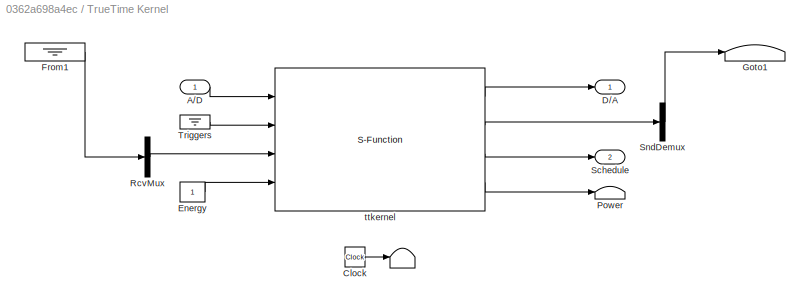
BLOCK [SubSystem] TrueTime Kernel
  ErrorFcn = ttkernel_error
  FunctionWithSeparateData = off
  InitFcn = sfunchk(get_param(gcb,'sfun'));
  MaskCallbackString = ||||||||||
  MaskDisplay = disp(get_param(gcb,'label'))
  MaskEnableString = on,on,on,on,on,on,on,on,on,on,on
  MaskHideContents = off
  MaskIconFrame = on
  MaskIconOpaque = off
  MaskIconRotate = none
  MaskIconUnits = normalized
  MaskInitialization = ttkernel_callback(gcb,{sfun,args,ninputsoutputs,ntriggers,trigtype,nwnodenbr,clockoffsetdrift,schedoutput,battery,poweroutput})
  MaskPortRotate = default
  MaskPromptString = Name of init function (MEX or MATLAB):|Init function argument (arbitrary struct):|Number of analog inputs and outputs:|Number of external triggers:|Trigger type:|(Network and) Node number(s):|Local clock offset and drift:|Show Schedule output port|Show Energy supply input port|Show Power consumption output port|label
  MaskSelfModifiable = on
  MaskStyleString = edit,edit,edit,edit,popup(rising|falling|either),edit,edit,checkbox,checkbox,checkbox,edit
  MaskToolTipString = on,on,on,on,on,on,on,on,on,on,on
  MaskTunableValueString = off,off,on,on,on,on,off,on,off,on,on
  MaskValueString = node_init|[]|[1 1]|0|falling|[]|[0 0]|on|off|off|
  MaskVariables = sfun=&1;args=@2;ninputsoutputs=@3;ntriggers=@4;trigtype=@5;nwnodenbr=@6;clockoffsetdrift=@7;schedoutput=@8;battery=@9;poweroutput=@10;label=@11;
  MaskVisibilityString = on,on,on,on,off,on,on,on,on,on,off
  MinAlgLoopOccurrences = off
  Opaque = off
  Ports = [1, 2]
  PropExecContextOutsideSubsystem = off
  RTWSystemCode = Auto
  RequestExecContextInheritance = off
BLOCK [Terminator] TrueTime Kernel/ 
BLOCK [Inport] TrueTime Kernel/A//D
  IconDisplay = Port number
BLOCK [Clock] TrueTime Kernel/Clock
BLOCK [Outport] TrueTime Kernel/D//A
  IconDisplay = Port number
BLOCK [Constant] TrueTime Kernel/Energy
BLOCK [Ground] TrueTime Kernel/From1
BLOCK [Terminator] TrueTime Kernel/Goto1
BLOCK [Terminator] TrueTime Kernel/Power
BLOCK [Mux] TrueTime Kernel/RcvMux
  DisplayOption = bar
  Inputs = 1
  Ports = [1, 1]
BLOCK [Outport] TrueTime Kernel/Schedule
  IconDisplay = Port number
  Port = 2
BLOCK [Demux] TrueTime Kernel/SndDemux
  Outputs = 1
  Ports = [1, 1]
BLOCK [Ground] TrueTime Kernel/Triggers
BLOCK [S-Function] TrueTime Kernel/ttkernel
  EnableBusSupport = off
  FunctionName = eval(eval(['''sfunchk(''''' sfun ''''')''']))
  Parameters = sfun, args, ninputsoutputs, ntriggers, trigtype, nwnodenbr, clockoffsetdrift
  Ports = [4, 4]
BLOCK [SubSystem] TrueTime Network
  FunctionWithSeparateData = off
  MaskCallbackString = ttnetwork_callback|||||||||||||||||||||
  MaskDisplay = disp(nwnbr)
  MaskEnableString = on,on,on,on,on,on,on,on,on,on,on,on,on,on,on,on,on,on,on,on,on,on
  MaskHideContents = off
  MaskIconFrame = on
  MaskIconOpaque = off
  MaskIconRotate = none
  MaskIconUnits = autoscale
  MaskInitialization = ttnetwork_callback(gcb,nwnbr,nnodes,scheduleoutput)
  MaskPortRotate = default
  MaskPromptString = Network type:|Network number:|Number of nodes:|Data rate (bits/s):|Minimum frame size (bits):|Loss probability (0-1):|Initial seed:|Bandwidth allocations:|Slotsize (bits):|Static schedule:|Total switch memory (bits):|Switch buffer type:|Switch overflow behavior:|Dynamic Schedule:|Mini slot size (bits):|Network idle time (bits):|Input Queue Sorted by: |Synchronization length (bits):|IRT Schedule [m...<+134ch>
  MaskSelfModifiable = on
  MaskStyleString = popup(CSMA/CD (Ethernet)|CSMA/AMP (CAN)|Round Robin|FDMA|TDMA|Switched Ethernet|FlexRay|PROFINET|NCM),edit,edit,edit,edit,edit,edit,edit,edit,edit,edit,popup(Common buffer|Symmetric output buffers),popup(Retransmit|Drop),edit,edit,edit,popup(FIFO|Priority),edit,edit,edit,edit,checkbox
  MaskToolTipString = on,on,on,on,on,on,on,on,on,on,on,on,on,on,on,on,on,on,on,on,on,on
  MaskTunableValueString = on,on,on,on,on,on,on,on,on,on,on,on,on,on,on,on,off,on,on,on,on,on
  MaskType = Real-Time Network
  MaskValueString = CSMA/CD (Ethernet)|1|1|10000000|512|0|0|[0.5 0.5]|512|[1 1 2]|80000|Common buffer|Retransmit|0|0|0|FIFO|0|0|0|0|on
  MaskVariables = nwtype=@1;nwnbr=@2;nnodes=@3;rate=@4;minsize=@5;lossprob=@6;seed=@7;bandwidths=@8;slotsize=@9;schedule=@10;memsize=@11;buftype=@12;overflow=@13;dynSchedule=@14;miniSlotSize=@15;NIT=@16;QSortMode=@17;sync=@18;irtSchedule=@19;nrtLength=@20;nodeGraph=@21;scheduleoutput=@22;
  MaskVisibilityString = on,on,on,on,on,on,on,off,off,off,off,off,off,off,off,off,off,off,off,off,off,on
  MinAlgLoopOccurrences = off
  Opaque = off
  Ports = [0, 1]
  PropExecContextOutsideSubsystem = off
  RTWSystemCode = Auto
  RequestExecContextInheritance = off
BLOCK [Terminator] TrueTime Network/ 
BLOCK [Clock] TrueTime Network/Clock
BLOCK [From] TrueTime Network/From1
  GotoTag = snd1_1
BLOCK [Goto] TrueTime Network/Goto1
  GotoTag = rcv1_1
  TagVisibility = global
BLOCK [Demux] TrueTime Network/RcvDemux
  Outputs = 1
  Ports = [1, 1]
BLOCK [Outport] TrueTime Network/Schedule
  IconDisplay = Port number
BLOCK [Mux] TrueTime Network/SndMux
  DisplayOption = bar
  Inputs = 1
  Ports = [1, 1]
BLOCK [S-Function] TrueTime Network/ttnetwork
  EnableBusSupport = off
  FunctionName = ttnetwork
  Parameters = nwtype,nwnbr,nnodes,rate,minsize,lossprob,bandwidths,slotsize,schedule,memsize,buftype,overflow,seed,dynSchedule,miniSlotSize,NIT,QSortMode,sync,irtSchedule,nrtLength,nodeGraph
  Ports = [1, 2]
BLOCK [SubSystem] TrueTime Receive
  FunctionWithSeparateData = off
  MaskCallbackString = |||||||||
  MaskDisplay = disp([num2str(nwnbr) ': ' num2str(receiver)])
  MaskEnableString = on,on,on,on,on,on,on,on,on,on
  MaskHideContents = off
  MaskIconFrame = on
  MaskIconOpaque = off
  MaskIconRotate = none
  MaskIconUnits = autoscale
  MaskInitialization = ttreceive_callback(gcb,nwnbr,receiver,triggeroutput,senderoutput,lengthoutput,priorityoutput,timestampoutput,signalpoweroutput,msgIDoutput)
  MaskPortRotate = default
  MaskPromptString = Network number:|Receiver id:|Data output port dimension:|Show trigger output port|Show sender output port|Show length output port|Show priority output port|Show timestamp output port|Show signal power output port|Show message id output port
  MaskSelfModifiable = on
  MaskStyleString = edit,edit,edit,checkbox,checkbox,checkbox,checkbox,checkbox,checkbox,checkbox
  MaskToolTipString = on,on,on,on,on,on,on,on,on,on
  MaskTunableValueString = on,on,on,on,on,on,on,on,on,on
  MaskValueString = 1|1|1|on|off|off|off|off|off|off
  MaskVariables = nwnbr=@1;receiver=@2;outdim=@3;triggeroutput=@4;senderoutput=@5;lengthoutput=@6;priorityoutput=@7;timestampoutput=@8;signalpoweroutput=@9;msgIDoutput=@10;
  MaskVisibilityString = on,on,on,on,on,on,on,on,on,on
  MinAlgLoopOccurrences = off
  Opaque = off
  Ports = [0, 2]
  PropExecContextOutsideSubsystem = off
  RTWSystemCode = Auto
  RequestExecContextInheritance = off
BLOCK [Outport] TrueTime Receive/Data
  IconDisplay = Port number
BLOCK [From] TrueTime Receive/From
  GotoTag = rcv1_1
BLOCK [Terminator] TrueTime Receive/Length
BLOCK [Terminator] TrueTime Receive/Message ID
BLOCK [Terminator] TrueTime Receive/Prio
BLOCK [Terminator] TrueTime Receive/Sender
BLOCK [Terminator] TrueTime Receive/Signal power
BLOCK [SubSystem] TrueTime Receive/Subsystem
  FunctionWithSeparateData = off
  MaskHideContents = off
  MinAlgLoopOccurrences = off
  Opaque = off
  Ports = [0, 8, 0, 1]
  PropExecContextOutsideSubsystem = off
  RTWSystemCode = Auto
  RequestExecContextInheritance = off
  TreatAsAtomicUnit = on
BLOCK [Outport] TrueTime Receive/Subsystem/Out1
  IconDisplay = Port number
BLOCK [Outport] TrueTime Receive/Subsystem/Out2
  IconDisplay = Port number
  Port = 2
BLOCK [Outport] TrueTime Receive/Subsystem/Out3
  IconDisplay = Port number
  Port = 3
BLOCK [Outport] TrueTime Receive/Subsystem/Out4
  IconDisplay = Port number
  Port = 4
BLOCK [Outport] TrueTime Receive/Subsystem/Out5
  IconDisplay = Port number
  Port = 5
BLOCK [Outport] TrueTime Receive/Subsystem/Out6
  IconDisplay = Port number
  Port = 6
BLOCK [Outport] TrueTime Receive/Subsystem/Out7
  IconDisplay = Port number
  Port = 7
BLOCK [Outport] TrueTime Receive/Subsystem/Out8
  IconDisplay = Port number
  Port = 8
BLOCK [S-Function] TrueTime Receive/Subsystem/S-Function
  EnableBusSupport = off
  FunctionName = ttreceive
  Parameters = nwnbr,receiver,outdim
  Ports = [0, 7]
BLOCK [TriggerPort] TrueTime Receive/Subsystem/Trigger
  Ports = [0, 1]
  ShowOutputPort = on
  TriggerType = either
BLOCK [Terminator] TrueTime Receive/Timestamp
BLOCK [Outport] TrueTime Receive/Trigger
  IconDisplay = Port number
  Port = 2
BLOCK [SubSystem] TrueTime Send
  FunctionWithSeparateData = off
  MaskCallbackString = ||||ttsend_callback||ttsend_callback||ttsend_callback||ttsend_callback||
  MaskDisplay = disp([num2str(nwnbr) ': ' num2str(sender)])
  MaskEnableString = on,on,on,on,on,on,on,on,on,on,on,on,on
  MaskHideContents = off
  MaskIconFrame = on
  MaskIconOpaque = off
  MaskIconRotate = none
  MaskIconUnits = autoscale
  MaskInitialization = ttsend_callback(gcb,trigger,nwnbr,sender,recsource,lengthsource,priosource,msgIDsource)
  MaskPortRotate = default
  MaskPromptString = Trigger type:|Network number:|Sender id:|Data input port dimension:|Receiver source:|Receiver id:|Length source:|Data length (bits):|Priority source:|Priority (for CAN):|Message ID source:|Message ID:|Segment (for FlexRay):
  MaskSelfModifiable = on
  MaskStyleString = popup(rising|falling|either),edit,edit,edit,popup(internal|external),edit,popup(internal|external),edit,popup(internal|external),edit,popup(internal|external),edit,popup(static|dynamic)
  MaskToolTipString = on,on,on,on,on,on,on,on,on,on,on,on,on
  MaskTunableValueString = on,on,on,on,on,on,on,on,on,on,on,on,on
  MaskValueString = falling|1|1|1|internal|1|internal|1000|internal|1|internal|0|Dynamic
  MaskVariables = trigger=&1;nwnbr=@2;sender=@3;indim=@4;recsource=@5;receiver=@6;lengthsource=@7;length=@8;priosource=@9;prio=@10;msgIDsource=@11;msgID=@12;dynamicSegment=@13;
  MaskVisibilityString = on,on,on,on,on,on,on,on,on,on,on,on,on
  MinAlgLoopOccurrences = off
  Opaque = off
  Ports = [2]
  PropExecContextOutsideSubsystem = off
  RTWSystemCode = Auto
  RequestExecContextInheritance = off
BLOCK [Inport] TrueTime Send/Data
  IconDisplay = Port number
BLOCK [Goto] TrueTime Send/Goto
  GotoTag = snd1_1
  TagVisibility = global
BLOCK [Constant] TrueTime Send/Length
  Value = length
BLOCK [Constant] TrueTime Send/MsgID
  Value = msgID
BLOCK [Constant] TrueTime Send/Prio
  Value = prio
BLOCK [Constant] TrueTime Send/Receiver
  Value = receiver
BLOCK [SubSystem] TrueTime Send/Subsystem
  FunctionWithSeparateData = off
  MaskHideContents = off
  MinAlgLoopOccurrences = off
  Opaque = off
  Ports = [5, 1, 0, 1]
  PropExecContextOutsideSubsystem = off
  RTWSystemCode = Auto
  RequestExecContextInheritance = off
  TreatAsAtomicUnit = on
BLOCK [Inport] TrueTime Send/Subsystem/In1
  IconDisplay = Port number
BLOCK [Inport] TrueTime Send/Subsystem/In2
  IconDisplay = Port number
  Port = 2
BLOCK [Inport] TrueTime Send/Subsystem/In3
  IconDisplay = Port number
  Port = 3
BLOCK [Inport] TrueTime Send/Subsystem/In4
  IconDisplay = Port number
  Port = 4
BLOCK [Inport] TrueTime Send/Subsystem/In5
  IconDisplay = Port number
  Port = 5
BLOCK [Outport] TrueTime Send/Subsystem/Out1
  IconDisplay = Port number
BLOCK [S-Function] TrueTime Send/Subsystem/S-Function
  EnableBusSupport = off
  FunctionName = ttsend
  Parameters = nwnbr,sender,indim,dynamicSegment
  Ports = [5, 1]
BLOCK [TriggerPort] TrueTime Send/Subsystem/Trigger
  Ports = []
  TriggerType = falling
BLOCK [Inport] TrueTime Send/Trigger
  IconDisplay = Port number
  Port = 2
BLOCK [SubSystem] TrueTime Ultrasound Network
  FunctionWithSeparateData = off
  MaskCallbackString = |||||
  MaskDisplay = disp(nwnbr)
  MaskEnableString = on,on,on,on,on,on
  MaskHideContents = off
  MaskIconFrame = on
  MaskIconOpaque = off
  MaskIconRotate = none
  MaskIconUnits = autoscale
  MaskInitialization = ttusnetwork_callback(gcb,{nwnbr,nnodes,reach,pinglength,speedofsound,scheduleoutput})
  MaskPortRotate = default
  MaskPromptString = Network Number:|Number of nodes:|Reach (m):|Ping length (s):|Speed of sound (m/s):|Show schedule output port
  MaskSelfModifiable = on
  MaskStyleString = edit,edit,edit,edit,edit,checkbox
  MaskToolTipString = on,on,on,on,on,on
  MaskTunableValueString = off,off,off,on,on,on
  MaskType = Ultrasound Network
  MaskValueString = 1|1|10.0|0.001|344.0|on
  MaskVariables = nwnbr=@1;nnodes=@2;reach=@3;pinglength=@4;speedofsound=@5;scheduleoutput=@6;
  MaskVisibilityString = on,on,on,on,on,on
  MinAlgLoopOccurrences = off
  Opaque = off
  Ports = [2, 1]
  PropExecContextOutsideSubsystem = off
  RTWSystemCode = Auto
  RequestExecContextInheritance = off
BLOCK [Terminator] TrueTime Ultrasound Network/ 
BLOCK [Clock] TrueTime Ultrasound Network/Clock
BLOCK [From] TrueTime Ultrasound Network/From1
  GotoTag = snd1_1
BLOCK [Goto] TrueTime Ultrasound Network/Goto1
  GotoTag = rcv1_1
  TagVisibility = global
BLOCK [Demux] TrueTime Ultrasound Network/RcvDemux
  Outputs = 1
  Ports = [1, 1]
BLOCK [Outport] TrueTime Ultrasound Network/Schedule
  IconDisplay = Port number
BLOCK [Mux] TrueTime Ultrasound Network/SndMux
  DisplayOption = bar
  Inputs = 1
  Ports = [1, 1]
BLOCK [S-Function] TrueTime Ultrasound Network/ttusnetwork
  EnableBusSupport = off
  FunctionName = ttusnetwork
  Parameters = nwnbr,nnodes,reach,pinglength,speedofsound
  Ports = [3, 2]
BLOCK [Inport] TrueTime Ultrasound Network/x
  IconDisplay = Port number
BLOCK [Inport] TrueTime Ultrasound Network/y
  IconDisplay = Port number
  Port = 2
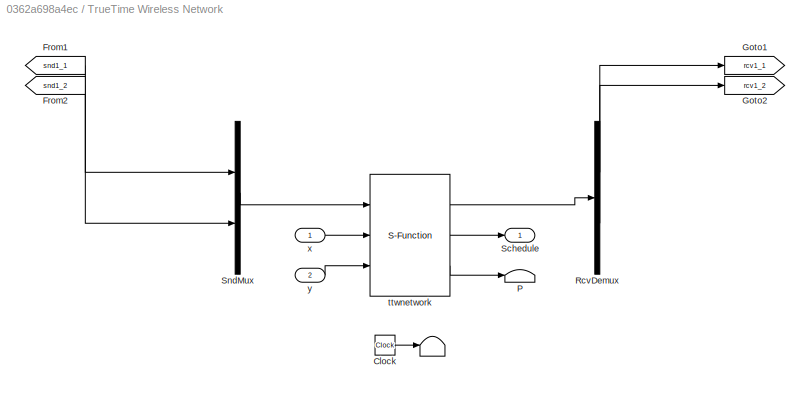
BLOCK [SubSystem] TrueTime Wireless Network
  FunctionWithSeparateData = off
  MaskCallbackString = |||||||ttwnetwork_callback|||||||||
  MaskDisplay = disp(nwnbr)
  MaskEnableString = on,on,on,on,on,on,on,on,on,on,on,on,on,on,on,on,on
  MaskHideContents = off
  MaskIconFrame = on
  MaskIconOpaque = off
  MaskIconRotate = none
  MaskIconUnits = autoscale
  MaskInitialization = ttwnetwork_callback(gcb,{nwtype,nwnbr,nnodes,rate,minsize,transpower,threshold,use_pathloss_function,pathloss,pathloss_function,acktimeout,retrylimit,error_threshold,lossprob,seed,scheduleoutput,poweroutput})
  MaskPortRotate = default
  MaskPromptString = Network type:|Network Number:|Number of nodes:|Data rate (bits/s):|Minimum frame size (bits):|Transmit power (dbm):|Receiver signal threshold (dbm):|Pathloss function:|Pathloss exponent (1/distance^x):|Matlab pathloss function:|ACK timeout (s):|Retry limit:|Error coding threshold:|Loss probability (0-1):|Initial seed:|Show Schedule output port|Show Power consumption output port
  MaskSelfModifiable = on
  MaskStyleString = popup(802.11b (WLAN)|802.15.4 (ZigBee)|NCM_WIRELESS),edit,edit,edit,edit,edit,edit,popup(default|custom),edit,edit,edit,edit,edit,edit,edit,checkbox,checkbox
  MaskToolTipString = on,on,on,on,on,on,on,on,on,on,on,on,on,on,on,on,on
  MaskTunableValueString = off,off,off,off,off,off,off,off,off,off,off,off,off,on,on,on,on
  MaskType = Wireless Network
  MaskValueString = 802.11b (WLAN)|1|2|800000|272|20|-48|default|3.5||0.00004|5|0.03|0|0|on|off
  MaskVariables = nwtype=@1;nwnbr=@2;nnodes=@3;rate=@4;minsize=@5;transpower=@6;threshold=@7;use_pathloss_function=&8;pathloss=@9;pathloss_function=&10;acktimeout=@11;retrylimit=@12;error_threshold=@13;lossprob=@14;seed=@15;scheduleoutput=@16;poweroutput=@17;
  MaskVisibilityString = on,on,on,on,on,on,on,on,on,off,on,on,on,on,on,on,on
  MinAlgLoopOccurrences = off
  Opaque = off
  Ports = [2, 1]
  PropExecContextOutsideSubsystem = off
  RTWSystemCode = Auto
  RequestExecContextInheritance = off
BLOCK [Terminator] TrueTime Wireless Network/ 
BLOCK [Clock] TrueTime Wireless Network/Clock
BLOCK [From] TrueTime Wireless Network/From1
  GotoTag = snd1_1
BLOCK [From] TrueTime Wireless Network/From2
  GotoTag = snd1_2
BLOCK [Goto] TrueTime Wireless Network/Goto1
  GotoTag = rcv1_1
  TagVisibility = global
BLOCK [Goto] TrueTime Wireless Network/Goto2
  GotoTag = rcv1_2
  TagVisibility = global
BLOCK [Terminator] TrueTime Wireless Network/P
BLOCK [Demux] TrueTime Wireless Network/RcvDemux
  Outputs = 2
  Ports = [1, 2]
BLOCK [Outport] TrueTime Wireless Network/Schedule
  IconDisplay = Port number
BLOCK [Mux] TrueTime Wireless Network/SndMux
  DisplayOption = bar
  Inputs = 2
  Ports = [2, 1]
BLOCK [S-Function] TrueTime Wireless Network/ttwnetwork
  EnableBusSupport = off
  FunctionName = ttwnetwork
  Parameters = nwtype,nwnbr,nnodes,rate,minsize,transpower,threshold,pathloss,use_pathloss_function,pathloss_function,acktimeout,retrylimit,error_threshold,lossprob,seed
  Ports = [3, 3]
BLOCK [Inport] TrueTime Wireless Network/x
  IconDisplay = Port number
BLOCK [Inport] TrueTime Wireless Network/y
  IconDisplay = Port number
  Port = 2
ANNOTATION (root): Truetime 2.0 Block Library <copyright redacted>
LINE TrueTime Battery/Gain:1 -> TrueTime Battery/Integrator:1
LINE TrueTime Battery/Integrator:1 -> TrueTime Battery/E:1
LINE TrueTime Battery/P:1 -> TrueTime Battery/Sum:1
LINE TrueTime Battery/Sum:1 -> TrueTime Battery/Gain:1
